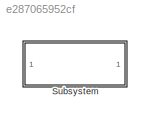
MODEL slx_e287065952cf
KIND model
CONFIG AbsTol = auto
CONFIG EnableMultiTasking = off
CONFIG FixedStep = auto
CONFIG MaxStep = auto
CONFIG MinStep = auto
CONFIG RelTol = 1e-3
CONFIG SampleTimeConstraint = Unconstrained
CONFIG SolverName = VariableStepAuto
CONFIG StartTime = 0.0
CONFIG StopTime = 10.0
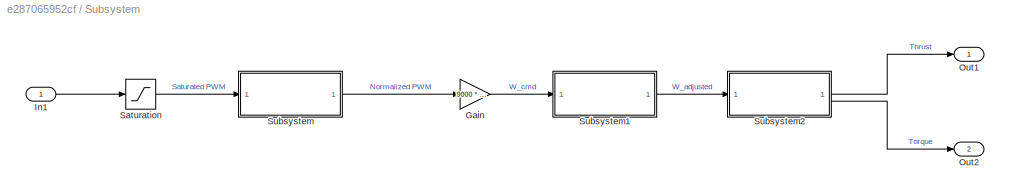
BLOCK [SubSystem] Subsystem
BLOCK [Gain] Subsystem/Gain
  Gain = 9000 * 2*pi/60
BLOCK [Inport] Subsystem/In1
  AttributesFormatString = PWM Signal
BLOCK [Outport] Subsystem/Out1
  AttributesFormatString = Thrust Output
BLOCK [Outport] Subsystem/Out2
  AttributesFormatString = Torque Output
  Port = 2
BLOCK [Saturate] Subsystem/Saturation
  LowerLimit = 1000
  UpperLimit = 2000
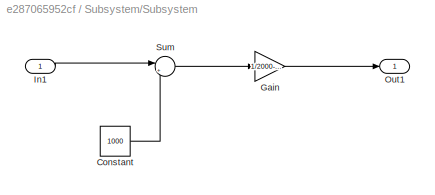
BLOCK [SubSystem] Subsystem/Subsystem
  AttributesFormatString = Normalized PWM
BLOCK [Constant] Subsystem/Subsystem/Constant
  Value = 1000
BLOCK [Gain] Subsystem/Subsystem/Gain
  Gain = 1/2000-1000
BLOCK [Inport] Subsystem/Subsystem/In1
  AttributesFormatString = Saturated PWM
BLOCK [Outport] Subsystem/Subsystem/Out1
  AttributesFormatString = Normalized PWM
BLOCK [Sum] Subsystem/Subsystem/Sum
  Inputs = |+-
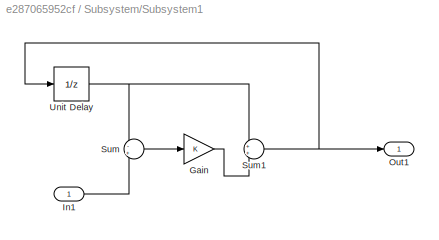
BLOCK [SubSystem] Subsystem/Subsystem1
  AttributesFormatString = Motor_dynamics
BLOCK [Gain] Subsystem/Subsystem1/Gain
BLOCK [Inport] Subsystem/Subsystem1/In1
  AttributesFormatString = W_cmd
BLOCK [Outport] Subsystem/Subsystem1/Out1
  AttributesFormatString = W_adjusted
BLOCK [Sum] Subsystem/Subsystem1/Sum
  Inputs = -+
BLOCK [Sum] Subsystem/Subsystem1/Sum1
BLOCK [UnitDelay] Subsystem/Subsystem1/Unit Delay
  HasFrameUpgradeWarning = on
  SampleTime = -1
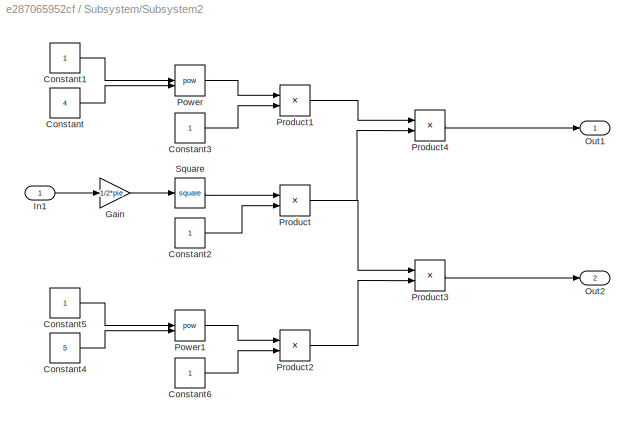
BLOCK [SubSystem] Subsystem/Subsystem2
  AttributesFormatString = Propeller_Aerodynamics
BLOCK [Constant] Subsystem/Subsystem2/Constant
  Value = 4
BLOCK [Constant] Subsystem/Subsystem2/Constant1
  AttributesFormatString = prop_diameter
BLOCK [Constant] Subsystem/Subsystem2/Constant2
  AttributesFormatString = density
BLOCK [Constant] Subsystem/Subsystem2/Constant3
  AttributesFormatString = prop_Thrust_ratio
BLOCK [Constant] Subsystem/Subsystem2/Constant4
  Value = 5
BLOCK [Constant] Subsystem/Subsystem2/Constant5
  AttributesFormatString = prop_diameter
BLOCK [Constant] Subsystem/Subsystem2/Constant6
  AttributesFormatString = prop_Torque_ratio
BLOCK [Gain] Subsystem/Subsystem2/Gain
  Gain = 1/2*pie
BLOCK [Inport] Subsystem/Subsystem2/In1
  AttributesFormatString = W_adjusted
BLOCK [Outport] Subsystem/Subsystem2/Out1
  AttributesFormatString = Thrust_generated
BLOCK [Outport] Subsystem/Subsystem2/Out2
  AttributesFormatString = Torque_generated
  Port = 2
BLOCK [Math] Subsystem/Subsystem2/Power
  Operator = pow
BLOCK [Math] Subsystem/Subsystem2/Power1
  Operator = pow
BLOCK [Product] Subsystem/Subsystem2/Product
BLOCK [Product] Subsystem/Subsystem2/Product1
BLOCK [Product] Subsystem/Subsystem2/Product2
BLOCK [Product] Subsystem/Subsystem2/Product3
BLOCK [Product] Subsystem/Subsystem2/Product4
BLOCK [Math] Subsystem/Subsystem2/Square
  Operator = square
LINE Subsystem/Gain:1 -> Subsystem/Subsystem1:1
LINE Subsystem/In1:1 -> Subsystem/Saturation:1
LINE Subsystem/Saturation:1 -> Subsystem/Subsystem:1
LINE Subsystem/Subsystem/Constant:1 -> Subsystem/Subsystem/Sum:2
LINE Subsystem/Subsystem/Gain:1 -> Subsystem/Subsystem/Out1:1
LINE Subsystem/Subsystem/In1:1 -> Subsystem/Subsystem/Sum:1
LINE Subsystem/Subsystem/Sum:1 -> Subsystem/Subsystem/Gain:1
LINE Subsystem/Subsystem1/Gain:1 -> Subsystem/Subsystem1/Sum1:2
LINE Subsystem/Subsystem1/In1:1 -> Subsystem/Subsystem1/Sum:2
NET Subsystem/Subsystem1/Sum1:1 -> Subsystem/Subsystem1/Out1:1, Subsystem/Subsystem1/Unit Delay:1
LINE Subsystem/Subsystem1/Sum:1 -> Subsystem/Subsystem1/Gain:1
NET Subsystem/Subsystem1/Unit Delay:1 -> Subsystem/Subsystem1/Sum1:1, Subsystem/Subsystem1/Sum:1
LINE Subsystem/Subsystem1:1 -> Subsystem/Subsystem2:1
LINE Subsystem/Subsystem2/Constant1:1 -> Subsystem/Subsystem2/Power:1
LINE Subsystem/Subsystem2/Constant2:1 -> Subsystem/Subsystem2/Product:2
LINE Subsystem/Subsystem2/Constant3:1 -> Subsystem/Subsystem2/Product1:2
LINE Subsystem/Subsystem2/Constant4:1 -> Subsystem/Subsystem2/Power1:2
LINE Subsystem/Subsystem2/Constant5:1 -> Subsystem/Subsystem2/Power1:1
LINE Subsystem/Subsystem2/Constant6:1 -> Subsystem/Subsystem2/Product2:2
LINE Subsystem/Subsystem2/Constant:1 -> Subsystem/Subsystem2/Power:2
LINE Subsystem/Subsystem2/Gain:1 -> Subsystem/Subsystem2/Square:1
LINE Subsystem/Subsystem2/In1:1 -> Subsystem/Subsystem2/Gain:1
LINE Subsystem/Subsystem2/Power1:1 -> Subsystem/Subsystem2/Product2:1
LINE Subsystem/Subsystem2/Power:1 -> Subsystem/Subsystem2/Product1:1
LINE Subsystem/Subsystem2/Product1:1 -> Subsystem/Subsystem2/Product4:1
LINE Subsystem/Subsystem2/Product2:1 -> Subsystem/Subsystem2/Product3:2
LINE Subsystem/Subsystem2/Product3:1 -> Subsystem/Subsystem2/Out2:1
LINE Subsystem/Subsystem2/Product4:1 -> Subsystem/Subsystem2/Out1:1
NET Subsystem/Subsystem2/Product:1 -> Subsystem/Subsystem2/Product3:1, Subsystem/Subsystem2/Product4:2
LINE Subsystem/Subsystem2/Square:1 -> Subsystem/Subsystem2/Product:1
LINE Subsystem/Subsystem2:1 -> Subsystem/Out1:1
LINE Subsystem/Subsystem2:2 -> Subsystem/Out2:1
LINE Subsystem/Subsystem:1 -> Subsystem/Gain:1
note: NET lines group one-source signal fan-out (src -> all destinations, sorted); 1:1 wires keep LINE
